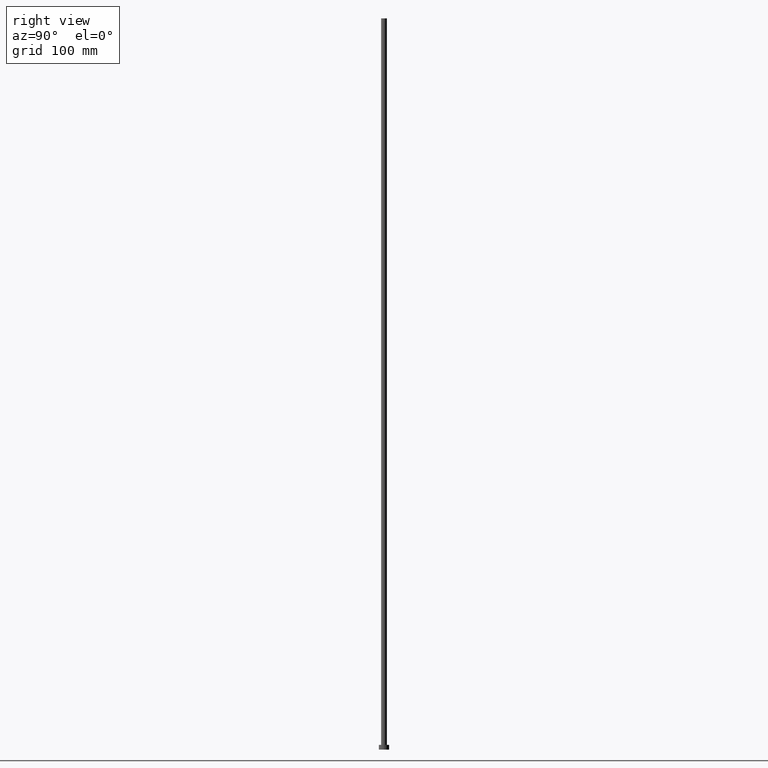
[diagram: clean part render]
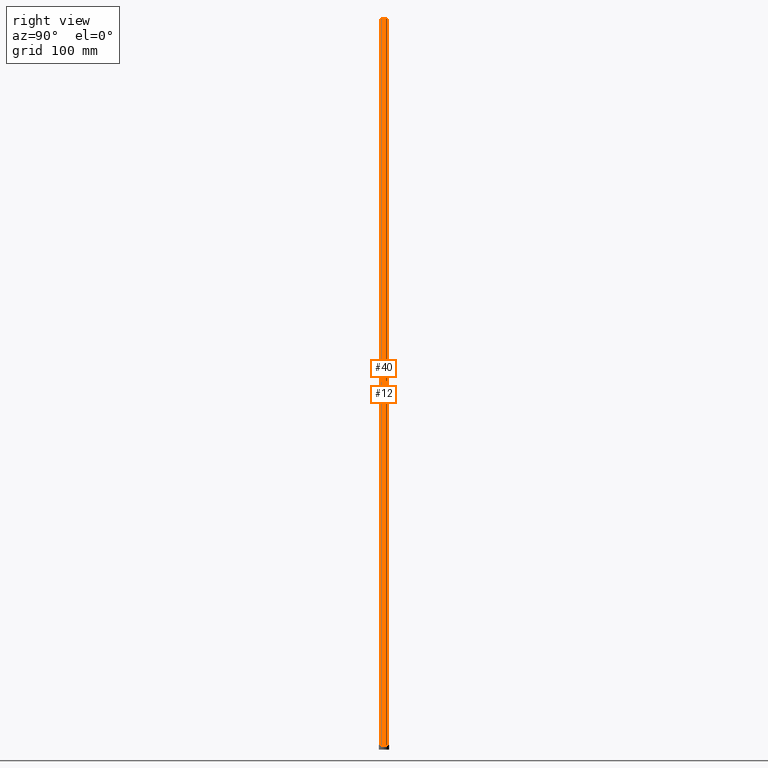
[diagram: same view with one multi-face feature highlighted, each face labeled with its STEP entity id]
A machine part, right view. The highlighted faces form ONE feature: a constant-radius fillet chain: 2 tangent blend faces with common blend radius 4 mm. The faces share edges in the B-rep.
Their STEP definitions:
[1] entity #40 (Cylinder):
#2 = EDGE_CURVE ( 'NONE', #3, #41, #100, .T. ) ;
#3 = VERTEX_POINT ( 'NONE', #22 ) ;
#13 = CARTESIAN_POINT ( 'NONE',  ( 4.000000000000000000, 4.898587196589412829E-16, 6.500000000000000000 ) ) ;
#22 = CARTESIAN_POINT ( 'NONE',  ( -4.000000000000000000, 0.000000000000000000, 1000.000000000000000 ) ) ;
#32 = AXIS2_PLACEMENT_3D ( 'NONE', #144, #165, #66 ) ;
#40 = ADVANCED_FACE ( 'NONE', ( #240 ), #120, .T. ) ;
#41 = VERTEX_POINT ( 'NONE', #146 ) ;
#46 = DIRECTION ( 'NONE',  ( 1.000000000000000000, 0.000000000000000000, 0.000000000000000000 ) ) ;
#50 = DIRECTION ( 'NONE',  ( -1.000000000000000000, 0.000000000000000000, 0.000000000000000000 ) ) ;
#56 = ORIENTED_EDGE ( 'NONE', *, *, #98, .F. ) ;
#66 = DIRECTION ( 'NONE',  ( 1.000000000000000000, 0.000000000000000000, 0.000000000000000000 ) ) ;
#78 = EDGE_LOOP ( 'NONE', ( #112, #56, #196, #137 ) ) ;
#84 = VECTOR ( 'NONE', #160, 1000.000000000000000 ) ;
#98 = EDGE_CURVE ( 'NONE', #3, #159, #148, .T. ) ;
#100 = LINE ( 'NONE', #113, #84 ) ;
#102 = DIRECTION ( 'NONE',  ( -0.000000000000000000, -0.000000000000000000, -1.000000000000000000 ) ) ;
#103 = DIRECTION ( 'NONE',  ( -0.000000000000000000, -0.000000000000000000, -1.000000000000000000 ) ) ;
#112 = ORIENTED_EDGE ( 'NONE', *, *, #210, .F. ) ;
#113 = CARTESIAN_POINT ( 'NONE',  ( -4.000000000000000000, 0.000000000000000000, 1000.000000000000000 ) ) ;
#120 = CYLINDRICAL_SURFACE ( 'NONE', #168, 4.000000000000000000 ) ;
#122 = CARTESIAN_POINT ( 'NONE',  ( 0.000000000000000000, 0.000000000000000000, 1000.000000000000000 ) ) ;
#130 = CARTESIAN_POINT ( 'NONE',  ( 4.000000000000000000, 4.898587196589412829E-16, 1000.000000000000000 ) ) ;
#137 = ORIENTED_EDGE ( 'NONE', *, *, #202, .T. ) ;
#144 = CARTESIAN_POINT ( 'NONE',  ( 0.000000000000000000, 0.000000000000000000, 6.500000000000000000 ) ) ;
#146 = CARTESIAN_POINT ( 'NONE',  ( -4.000000000000000000, 0.000000000000000000, 6.500000000000000000 ) ) ;
#148 = CIRCLE ( 'NONE', #184, 4.000000000000000000 ) ;
#154 = CARTESIAN_POINT ( 'NONE',  ( 0.000000000000000000, 0.000000000000000000, 1000.000000000000000 ) ) ;
#159 = VERTEX_POINT ( 'NONE', #130 ) ;
#160 = DIRECTION ( 'NONE',  ( -0.000000000000000000, -0.000000000000000000, -1.000000000000000000 ) ) ;
#165 = DIRECTION ( 'NONE',  ( 0.000000000000000000, 0.000000000000000000, 1.000000000000000000 ) ) ;
#166 = VECTOR ( 'NONE', #102, 1000.000000000000000 ) ;
#168 = AXIS2_PLACEMENT_3D ( 'NONE', #122, #103, #50 ) ;
#171 = DIRECTION ( 'NONE',  ( 0.000000000000000000, 0.000000000000000000, 1.000000000000000000 ) ) ;
#184 = AXIS2_PLACEMENT_3D ( 'NONE', #154, #171, #46 ) ;
#196 = ORIENTED_EDGE ( 'NONE', *, *, #2, .T. ) ;
#202 = EDGE_CURVE ( 'NONE', #41, #224, #213, .T. ) ;
#210 = EDGE_CURVE ( 'NONE', #159, #224, #228, .T. ) ;
#213 = CIRCLE ( 'NONE', #32, 4.000000000000000000 ) ;
#224 = VERTEX_POINT ( 'NONE', #13 ) ;
#228 = LINE ( 'NONE', #229, #166 ) ;
#229 = CARTESIAN_POINT ( 'NONE',  ( 4.000000000000000000, 4.898587196589412829E-16, 1000.000000000000000 ) ) ;
#240 = FACE_OUTER_BOUND ( 'NONE', #78, .T. ) ;
[2] entity #12 (Cylinder):
#2 = EDGE_CURVE ( 'NONE', #3, #41, #100, .T. ) ;
#3 = VERTEX_POINT ( 'NONE', #22 ) ;
#12 = ADVANCED_FACE ( 'NONE', ( #158 ), #249, .T. ) ;
#13 = CARTESIAN_POINT ( 'NONE',  ( 4.000000000000000000, 4.898587196589412829E-16, 6.500000000000000000 ) ) ;
#15 = EDGE_CURVE ( 'NONE', #224, #41, #117, .T. ) ;
#21 = ORIENTED_EDGE ( 'NONE', *, *, #210, .T. ) ;
#22 = CARTESIAN_POINT ( 'NONE',  ( -4.000000000000000000, 0.000000000000000000, 1000.000000000000000 ) ) ;
#36 = AXIS2_PLACEMENT_3D ( 'NONE', #244, #54, #191 ) ;
#41 = VERTEX_POINT ( 'NONE', #146 ) ;
#54 = DIRECTION ( 'NONE',  ( 0.000000000000000000, 0.000000000000000000, 1.000000000000000000 ) ) ;
#80 = ORIENTED_EDGE ( 'NONE', *, *, #15, .T. ) ;
#84 = VECTOR ( 'NONE', #160, 1000.000000000000000 ) ;
#95 = CIRCLE ( 'NONE', #241, 4.000000000000000000 ) ;
#100 = LINE ( 'NONE', #113, #84 ) ;
#102 = DIRECTION ( 'NONE',  ( -0.000000000000000000, -0.000000000000000000, -1.000000000000000000 ) ) ;
#110 = DIRECTION ( 'NONE',  ( -1.000000000000000000, 0.000000000000000000, 0.000000000000000000 ) ) ;
#113 = CARTESIAN_POINT ( 'NONE',  ( -4.000000000000000000, 0.000000000000000000, 1000.000000000000000 ) ) ;
#117 = CIRCLE ( 'NONE', #36, 4.000000000000000000 ) ;
#130 = CARTESIAN_POINT ( 'NONE',  ( 4.000000000000000000, 4.898587196589412829E-16, 1000.000000000000000 ) ) ;
#142 = CARTESIAN_POINT ( 'NONE',  ( 0.000000000000000000, 0.000000000000000000, 1000.000000000000000 ) ) ;
#146 = CARTESIAN_POINT ( 'NONE',  ( -4.000000000000000000, 0.000000000000000000, 6.500000000000000000 ) ) ;
#158 = FACE_OUTER_BOUND ( 'NONE', #218, .T. ) ;
#159 = VERTEX_POINT ( 'NONE', #130 ) ;
#160 = DIRECTION ( 'NONE',  ( -0.000000000000000000, -0.000000000000000000, -1.000000000000000000 ) ) ;
#166 = VECTOR ( 'NONE', #102, 1000.000000000000000 ) ;
#175 = EDGE_CURVE ( 'NONE', #159, #3, #95, .T. ) ;
#180 = ORIENTED_EDGE ( 'NONE', *, *, #175, .F. ) ;
#181 = CARTESIAN_POINT ( 'NONE',  ( 0.000000000000000000, 0.000000000000000000, 1000.000000000000000 ) ) ;
#191 = DIRECTION ( 'NONE',  ( 1.000000000000000000, 0.000000000000000000, 0.000000000000000000 ) ) ;
#201 = ORIENTED_EDGE ( 'NONE', *, *, #2, .F. ) ;
#210 = EDGE_CURVE ( 'NONE', #159, #224, #228, .T. ) ;
#212 = DIRECTION ( 'NONE',  ( 1.000000000000000000, 0.000000000000000000, 0.000000000000000000 ) ) ;
#218 = EDGE_LOOP ( 'NONE', ( #180, #21, #80, #201 ) ) ;
#224 = VERTEX_POINT ( 'NONE', #13 ) ;
#227 = DIRECTION ( 'NONE',  ( -0.000000000000000000, -0.000000000000000000, -1.000000000000000000 ) ) ;
#228 = LINE ( 'NONE', #229, #166 ) ;
#229 = CARTESIAN_POINT ( 'NONE',  ( 4.000000000000000000, 4.898587196589412829E-16, 1000.000000000000000 ) ) ;
#236 = AXIS2_PLACEMENT_3D ( 'NONE', #142, #227, #110 ) ;
#238 = DIRECTION ( 'NONE',  ( 0.000000000000000000, 0.000000000000000000, 1.000000000000000000 ) ) ;
#241 = AXIS2_PLACEMENT_3D ( 'NONE', #181, #238, #212 ) ;
#244 = CARTESIAN_POINT ( 'NONE',  ( 0.000000000000000000, 0.000000000000000000, 6.500000000000000000 ) ) ;
#249 = CYLINDRICAL_SURFACE ( 'NONE', #236, 4.000000000000000000 ) ;